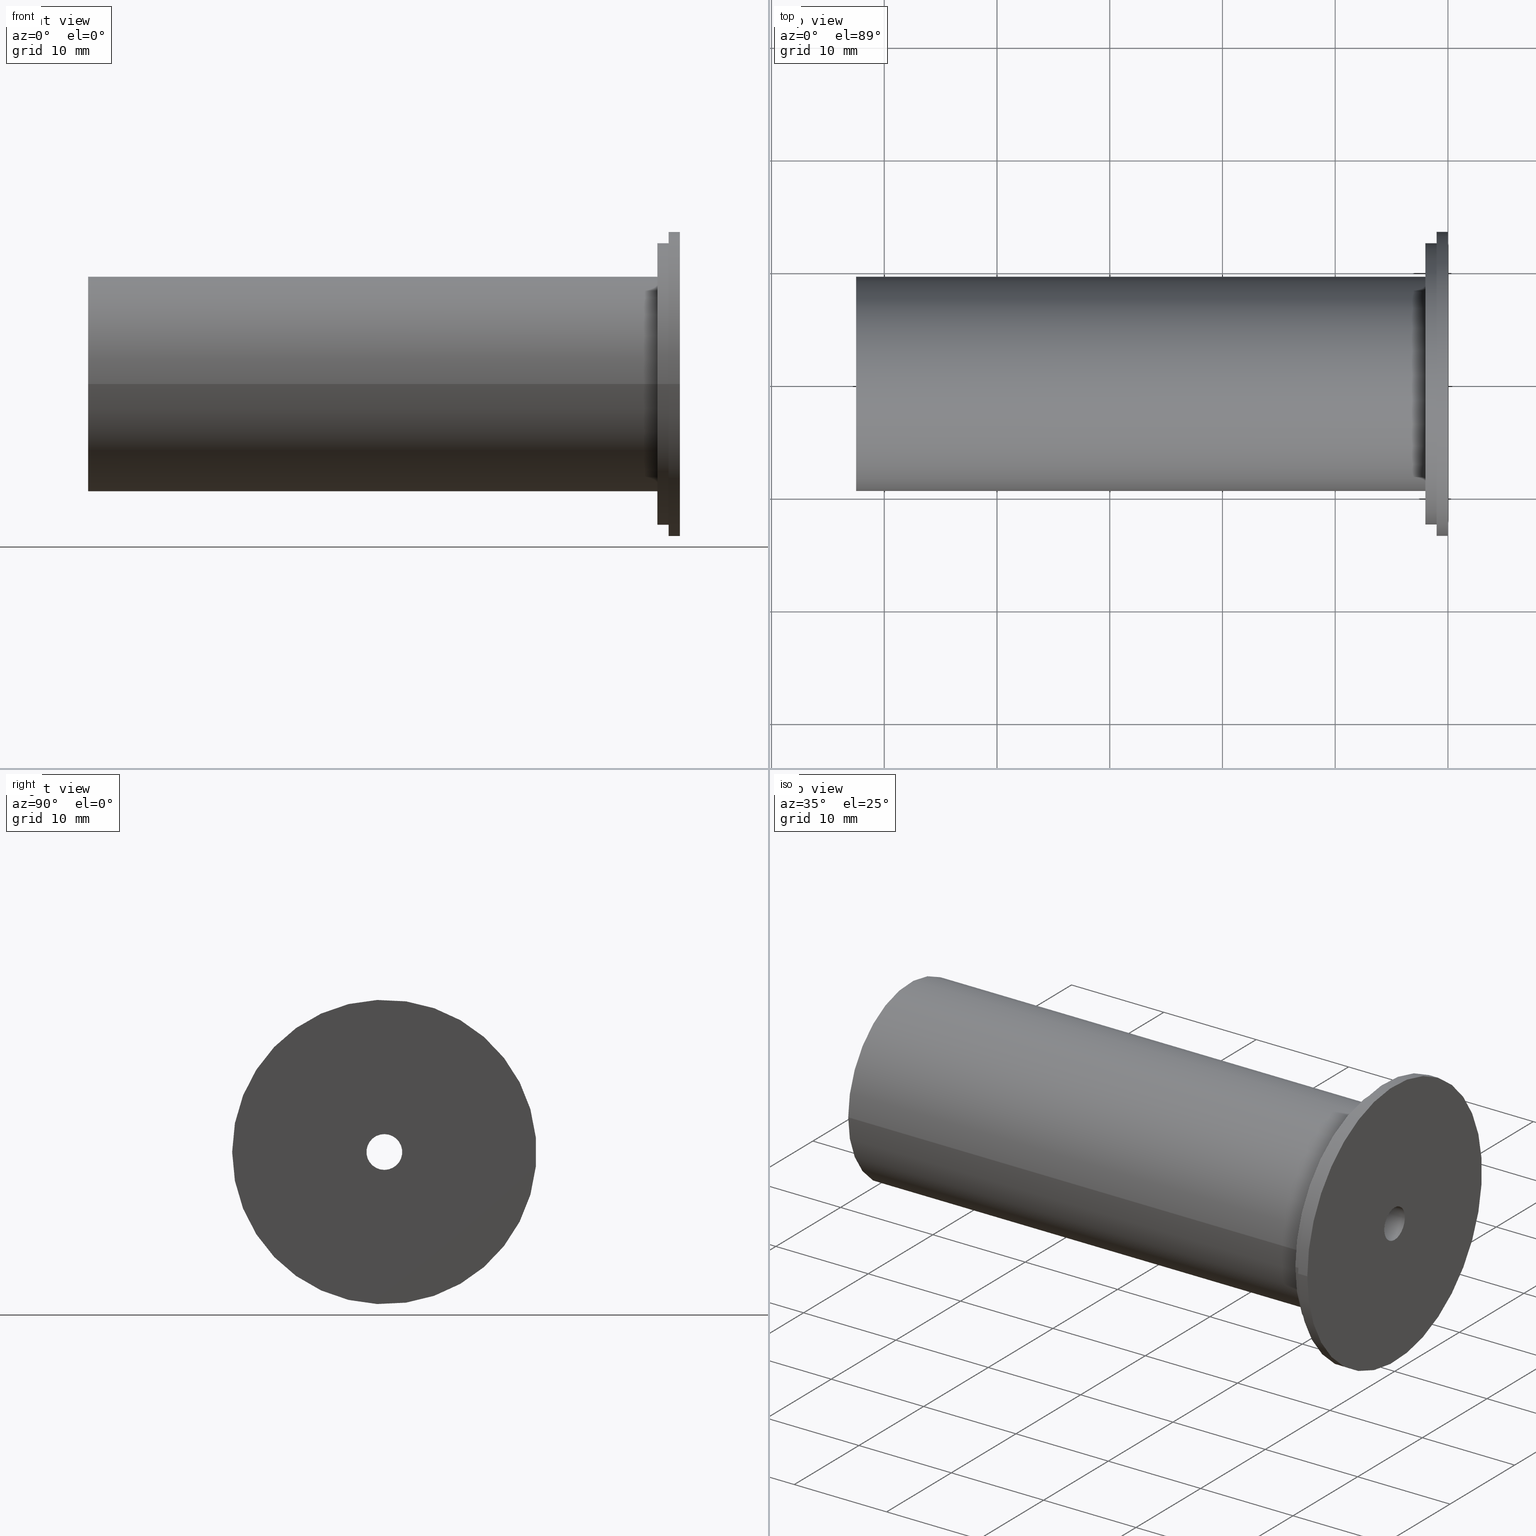
[diagram: canonical four-view strip — front | top / right | iso, engineering-drawing reading convention]
A machine part, canonical four-view strip (front | top / right | iso — engineering-drawing reading convention). The complete STEP part file that produces these views, byte-faithful:
ISO-10303-21;
HEADER;
/* Generated by software containing ST-Developer
 * from STEP Tools, Inc. (www.steptools.com) 
 */

FILE_DESCRIPTION(
/* description */ (''),
/* implementation_level */ '2;1');

FILE_NAME(
/* name */ 
'Z:\\\X2\C5F0AD6CC18C\X0\\\DRAWING_3D\\1. \X2\C778BCA4D130\X0\\\4. LAY
-OUT\\ACCESSORY&OTEHERS\\HYDRAULIC CHUCK\\REDUCTION SLEEVE (COLLET)\\H
K\\HK19.05\\HK19.05-3.175\\625108.stp',
/* time_stamp */ '2023-02-02T10:14:20+09:00',
/* author */ ('eos'),
/* organization */ (''),
/* preprocessor_version */ 'ST-DEVELOPER v18.1',
/* originating_system */ 'Autodesk Inventor 2022',
/* authorisation */ '');

FILE_SCHEMA (('AUTOMOTIVE_DESIGN { 1 0 10303 214 3 1 1 }'));
ENDSEC;

DATA;
#10=MECHANICAL_DESIGN_GEOMETRIC_PRESENTATION_REPRESENTATION('',(#13),#334);
#11=SHAPE_REPRESENTATION_RELATIONSHIP('SRR','None',#341,#12);
#12=ADVANCED_BREP_SHAPE_REPRESENTATION('',(#14),#333);
#13=STYLED_ITEM('',(#350),#14);
#14=MANIFOLD_SOLID_BREP('\X2\C194B9ACB4DC\X0\1',#176);
#15=FACE_BOUND('',#43,.T.);
#16=FACE_BOUND('',#46,.T.);
#17=FACE_BOUND('',#48,.T.);
#18=FACE_BOUND('',#51,.T.);
#19=PLANE('',#211);
#20=PLANE('',#216);
#21=PLANE('',#217);
#22=PLANE('',#221);
#23=CONICAL_SURFACE('',#203,3.75,0.785398163397448);
#24=CONICAL_SURFACE('',#207,4.125,0.785398163397448);
#25=FACE_OUTER_BOUND('',#37,.T.);
#26=FACE_OUTER_BOUND('',#38,.T.);
#27=FACE_OUTER_BOUND('',#39,.T.);
#28=FACE_OUTER_BOUND('',#40,.T.);
#29=FACE_OUTER_BOUND('',#41,.T.);
#30=FACE_OUTER_BOUND('',#42,.T.);
#31=FACE_OUTER_BOUND('',#44,.T.);
#32=FACE_OUTER_BOUND('',#45,.T.);
#33=FACE_OUTER_BOUND('',#47,.T.);
#34=FACE_OUTER_BOUND('',#49,.T.);
#35=FACE_OUTER_BOUND('',#50,.T.);
#36=FACE_OUTER_BOUND('',#52,.T.);
#37=EDGE_LOOP('',(#116,#117,#118,#119,#120));
#38=EDGE_LOOP('',(#121,#122,#123,#124,#125));
#39=EDGE_LOOP('',(#126,#127,#128,#129));
#40=EDGE_LOOP('',(#130,#131,#132,#133));
#41=EDGE_LOOP('',(#134,#135,#136,#137));
#42=EDGE_LOOP('',(#138));
#43=EDGE_LOOP('',(#139));
#44=EDGE_LOOP('',(#140,#141,#142,#143));
#45=EDGE_LOOP('',(#144));
#46=EDGE_LOOP('',(#145));
#47=EDGE_LOOP('',(#146));
#48=EDGE_LOOP('',(#147));
#49=EDGE_LOOP('',(#148,#149,#150,#151));
#50=EDGE_LOOP('',(#152));
#51=EDGE_LOOP('',(#153));
#52=EDGE_LOOP('',(#154,#155,#156,#157));
#53=LINE('',#289,#61);
#54=LINE('',#296,#62);
#55=LINE('',#300,#63);
#56=LINE('',#304,#64);
#57=LINE('',#308,#65);
#58=LINE('',#317,#66);
#59=LINE('',#325,#67);
#60=LINE('',#330,#68);
#61=VECTOR('',#230,1.5875);
#62=VECTOR('',#239,3.75);
#63=VECTOR('',#244,7.5);
#64=VECTOR('',#249,4.125);
#65=VECTOR('',#254,8.25);
#66=VECTOR('',#265,13.5);
#67=VECTOR('',#276,9.525);
#68=VECTOR('',#283,12.5);
#69=CIRCLE('',#200,1.5875);
#70=CIRCLE('',#201,1.5875);
#71=CIRCLE('',#202,1.5875);
#72=CIRCLE('',#204,7.5);
#73=CIRCLE('',#206,7.5);
#74=CIRCLE('',#208,8.25);
#75=CIRCLE('',#210,8.25);
#76=CIRCLE('',#212,13.5);
#77=CIRCLE('',#213,12.5);
#78=CIRCLE('',#215,13.5);
#79=CIRCLE('',#218,9.525);
#80=CIRCLE('',#220,9.525);
#81=CIRCLE('',#222,12.5);
#82=VERTEX_POINT('',#286);
#83=VERTEX_POINT('',#288);
#84=VERTEX_POINT('',#290);
#85=VERTEX_POINT('',#294);
#86=VERTEX_POINT('',#298);
#87=VERTEX_POINT('',#302);
#88=VERTEX_POINT('',#306);
#89=VERTEX_POINT('',#310);
#90=VERTEX_POINT('',#312);
#91=VERTEX_POINT('',#315);
#92=VERTEX_POINT('',#320);
#93=VERTEX_POINT('',#323);
#94=VERTEX_POINT('',#327);
#95=EDGE_CURVE('',#82,#82,#69,.T.);
#96=EDGE_CURVE('',#82,#83,#53,.T.);
#97=EDGE_CURVE('',#84,#83,#70,.T.);
#98=EDGE_CURVE('',#83,#84,#71,.T.);
#99=EDGE_CURVE('',#85,#85,#72,.T.);
#100=EDGE_CURVE('',#85,#84,#54,.T.);
#101=EDGE_CURVE('',#86,#86,#73,.T.);
#102=EDGE_CURVE('',#86,#85,#55,.T.);
#103=EDGE_CURVE('',#87,#87,#74,.T.);
#104=EDGE_CURVE('',#87,#86,#56,.T.);
#105=EDGE_CURVE('',#88,#88,#75,.T.);
#106=EDGE_CURVE('',#88,#87,#57,.T.);
#107=EDGE_CURVE('',#89,#89,#76,.T.);
#108=EDGE_CURVE('',#90,#90,#77,.T.);
#109=EDGE_CURVE('',#91,#91,#78,.T.);
#110=EDGE_CURVE('',#91,#89,#58,.T.);
#111=EDGE_CURVE('',#92,#92,#79,.T.);
#112=EDGE_CURVE('',#93,#93,#80,.T.);
#113=EDGE_CURVE('',#93,#92,#59,.T.);
#114=EDGE_CURVE('',#94,#94,#81,.T.);
#115=EDGE_CURVE('',#90,#94,#60,.T.);
#116=ORIENTED_EDGE('',*,*,#95,.F.);
#117=ORIENTED_EDGE('',*,*,#96,.T.);
#118=ORIENTED_EDGE('',*,*,#97,.F.);
#119=ORIENTED_EDGE('',*,*,#98,.F.);
#120=ORIENTED_EDGE('',*,*,#96,.F.);
#121=ORIENTED_EDGE('',*,*,#99,.T.);
#122=ORIENTED_EDGE('',*,*,#100,.T.);
#123=ORIENTED_EDGE('',*,*,#97,.T.);
#124=ORIENTED_EDGE('',*,*,#98,.T.);
#125=ORIENTED_EDGE('',*,*,#100,.F.);
#126=ORIENTED_EDGE('',*,*,#101,.F.);
#127=ORIENTED_EDGE('',*,*,#102,.T.);
#128=ORIENTED_EDGE('',*,*,#99,.F.);
#129=ORIENTED_EDGE('',*,*,#102,.F.);
#130=ORIENTED_EDGE('',*,*,#103,.T.);
#131=ORIENTED_EDGE('',*,*,#104,.T.);
#132=ORIENTED_EDGE('',*,*,#101,.T.);
#133=ORIENTED_EDGE('',*,*,#104,.F.);
#134=ORIENTED_EDGE('',*,*,#105,.F.);
#135=ORIENTED_EDGE('',*,*,#106,.T.);
#136=ORIENTED_EDGE('',*,*,#103,.F.);
#137=ORIENTED_EDGE('',*,*,#106,.F.);
#138=ORIENTED_EDGE('',*,*,#107,.F.);
#139=ORIENTED_EDGE('',*,*,#108,.T.);
#140=ORIENTED_EDGE('',*,*,#109,.F.);
#141=ORIENTED_EDGE('',*,*,#110,.T.);
#142=ORIENTED_EDGE('',*,*,#107,.T.);
#143=ORIENTED_EDGE('',*,*,#110,.F.);
#144=ORIENTED_EDGE('',*,*,#109,.T.);
#145=ORIENTED_EDGE('',*,*,#95,.T.);
#146=ORIENTED_EDGE('',*,*,#111,.F.);
#147=ORIENTED_EDGE('',*,*,#105,.T.);
#148=ORIENTED_EDGE('',*,*,#112,.F.);
#149=ORIENTED_EDGE('',*,*,#113,.T.);
#150=ORIENTED_EDGE('',*,*,#111,.T.);
#151=ORIENTED_EDGE('',*,*,#113,.F.);
#152=ORIENTED_EDGE('',*,*,#114,.F.);
#153=ORIENTED_EDGE('',*,*,#112,.T.);
#154=ORIENTED_EDGE('',*,*,#108,.F.);
#155=ORIENTED_EDGE('',*,*,#115,.T.);
#156=ORIENTED_EDGE('',*,*,#114,.T.);
#157=ORIENTED_EDGE('',*,*,#115,.F.);
#158=CYLINDRICAL_SURFACE('',#199,1.5875);
#159=CYLINDRICAL_SURFACE('',#205,7.5);
#160=CYLINDRICAL_SURFACE('',#209,8.25);
#161=CYLINDRICAL_SURFACE('',#214,13.5);
#162=CYLINDRICAL_SURFACE('',#219,9.525);
#163=CYLINDRICAL_SURFACE('',#223,12.5);
#164=ADVANCED_FACE('',(#25),#158,.F.);
#165=ADVANCED_FACE('',(#26),#23,.F.);
#166=ADVANCED_FACE('',(#27),#159,.F.);
#167=ADVANCED_FACE('',(#28),#24,.F.);
#168=ADVANCED_FACE('',(#29),#160,.F.);
#169=ADVANCED_FACE('',(#30,#15),#19,.T.);
#170=ADVANCED_FACE('',(#31),#161,.T.);
#171=ADVANCED_FACE('',(#32,#16),#20,.T.);
#172=ADVANCED_FACE('',(#33,#17),#21,.T.);
#173=ADVANCED_FACE('',(#34),#162,.T.);
#174=ADVANCED_FACE('',(#35,#18),#22,.T.);
#175=ADVANCED_FACE('',(#36),#163,.T.);
#176=CLOSED_SHELL('',(#164,#165,#166,#167,#168,#169,#170,#171,#172,#173,
#174,#175));
#177=DERIVED_UNIT_ELEMENT(#180,1.);
#178=DERIVED_UNIT_ELEMENT(#336,-3.);
#179=DIMENSIONAL_EXPONENTS(1.,0.,0.,0.,0.,0.,0.);
#180=(
CONVERSION_BASED_UNIT('gram',#182)
MASS_UNIT()
NAMED_UNIT(#179)
);
#181=(
MASS_UNIT()
NAMED_UNIT(*)
SI_UNIT(.KILO.,.GRAM.)
);
#182=MASS_MEASURE_WITH_UNIT(MASS_MEASURE(0.001),#181);
#183=DERIVED_UNIT((#177,#178));
#184=MEASURE_REPRESENTATION_ITEM('density measure',
POSITIVE_RATIO_MEASURE(1.),#183);
#185=PROPERTY_DEFINITION_REPRESENTATION(#190,#187);
#186=PROPERTY_DEFINITION_REPRESENTATION(#191,#188);
#187=REPRESENTATION('material name',(#189),#333);
#188=REPRESENTATION('density',(#184),#333);
#189=DESCRIPTIVE_REPRESENTATION_ITEM('\X2\C77CBC18\X0\','\X2\C77CBC18\X0\');
#190=PROPERTY_DEFINITION('material property','material name',#343);
#191=PROPERTY_DEFINITION('material property','density of part',#343);
#192=DATE_TIME_ROLE('creation_date');
#193=APPLIED_DATE_AND_TIME_ASSIGNMENT(#194,#192,(#343));
#194=DATE_AND_TIME(#195,#196);
#195=CALENDAR_DATE(2023,2,2);
#196=LOCAL_TIME(0,0,0.,#197);
#197=COORDINATED_UNIVERSAL_TIME_OFFSET(0,0,.BEHIND.);
#198=AXIS2_PLACEMENT_3D('placement',#284,#224,#225);
#199=AXIS2_PLACEMENT_3D('',#285,#226,#227);
#200=AXIS2_PLACEMENT_3D('',#287,#228,#229);
#201=AXIS2_PLACEMENT_3D('',#291,#231,#232);
#202=AXIS2_PLACEMENT_3D('',#292,#233,#234);
#203=AXIS2_PLACEMENT_3D('',#293,#235,#236);
#204=AXIS2_PLACEMENT_3D('',#295,#237,#238);
#205=AXIS2_PLACEMENT_3D('',#297,#240,#241);
#206=AXIS2_PLACEMENT_3D('',#299,#242,#243);
#207=AXIS2_PLACEMENT_3D('',#301,#245,#246);
#208=AXIS2_PLACEMENT_3D('',#303,#247,#248);
#209=AXIS2_PLACEMENT_3D('',#305,#250,#251);
#210=AXIS2_PLACEMENT_3D('',#307,#252,#253);
#211=AXIS2_PLACEMENT_3D('',#309,#255,#256);
#212=AXIS2_PLACEMENT_3D('',#311,#257,#258);
#213=AXIS2_PLACEMENT_3D('',#313,#259,#260);
#214=AXIS2_PLACEMENT_3D('',#314,#261,#262);
#215=AXIS2_PLACEMENT_3D('',#316,#263,#264);
#216=AXIS2_PLACEMENT_3D('',#318,#266,#267);
#217=AXIS2_PLACEMENT_3D('',#319,#268,#269);
#218=AXIS2_PLACEMENT_3D('',#321,#270,#271);
#219=AXIS2_PLACEMENT_3D('',#322,#272,#273);
#220=AXIS2_PLACEMENT_3D('',#324,#274,#275);
#221=AXIS2_PLACEMENT_3D('',#326,#277,#278);
#222=AXIS2_PLACEMENT_3D('',#328,#279,#280);
#223=AXIS2_PLACEMENT_3D('',#329,#281,#282);
#224=DIRECTION('axis',(0.,0.,1.));
#225=DIRECTION('refdir',(1.,0.,0.));
#226=DIRECTION('center_axis',(1.,0.,0.));
#227=DIRECTION('ref_axis',(0.,0.,-1.));
#228=DIRECTION('center_axis',(-1.,0.,0.));
#229=DIRECTION('ref_axis',(0.,0.,-1.));
#230=DIRECTION('',(-1.,0.,0.));
#231=DIRECTION('center_axis',(1.,0.,0.));
#232=DIRECTION('ref_axis',(0.,0.,-1.));
#233=DIRECTION('center_axis',(1.,0.,0.));
#234=DIRECTION('ref_axis',(0.,0.,-1.));
#235=DIRECTION('center_axis',(-1.,0.,0.));
#236=DIRECTION('ref_axis',(0.,0.,1.));
#237=DIRECTION('center_axis',(-1.,0.,0.));
#238=DIRECTION('ref_axis',(0.,0.,1.));
#239=DIRECTION('',(0.707106781186547,8.65956056235493E-17,0.707106781186547));
#240=DIRECTION('center_axis',(-1.,0.,0.));
#241=DIRECTION('ref_axis',(0.,0.,1.));
#242=DIRECTION('center_axis',(1.,0.,0.));
#243=DIRECTION('ref_axis',(0.,0.,1.));
#244=DIRECTION('',(1.,0.,0.));
#245=DIRECTION('center_axis',(-1.,0.,0.));
#246=DIRECTION('ref_axis',(0.,0.,1.));
#247=DIRECTION('center_axis',(-1.,0.,0.));
#248=DIRECTION('ref_axis',(0.,0.,1.));
#249=DIRECTION('',(0.707106781186548,8.65956056235493E-17,0.707106781186547));
#250=DIRECTION('center_axis',(-1.,0.,0.));
#251=DIRECTION('ref_axis',(0.,0.,1.));
#252=DIRECTION('center_axis',(1.,0.,0.));
#253=DIRECTION('ref_axis',(0.,0.,1.));
#254=DIRECTION('',(1.,0.,0.));
#255=DIRECTION('center_axis',(-1.,0.,0.));
#256=DIRECTION('ref_axis',(0.,0.,1.));
#257=DIRECTION('center_axis',(1.,0.,0.));
#258=DIRECTION('ref_axis',(0.,0.,-1.));
#259=DIRECTION('center_axis',(1.,0.,0.));
#260=DIRECTION('ref_axis',(0.,0.,-1.));
#261=DIRECTION('center_axis',(1.,0.,0.));
#262=DIRECTION('ref_axis',(0.,1.,0.));
#263=DIRECTION('center_axis',(1.,0.,0.));
#264=DIRECTION('ref_axis',(0.,0.,-1.));
#265=DIRECTION('',(-1.,0.,0.));
#266=DIRECTION('center_axis',(1.,0.,0.));
#267=DIRECTION('ref_axis',(0.,0.,-1.));
#268=DIRECTION('center_axis',(-1.,0.,0.));
#269=DIRECTION('ref_axis',(0.,0.,1.));
#270=DIRECTION('center_axis',(1.,0.,0.));
#271=DIRECTION('ref_axis',(0.,0.,-1.));
#272=DIRECTION('center_axis',(1.,0.,0.));
#273=DIRECTION('ref_axis',(0.,1.,0.));
#274=DIRECTION('center_axis',(1.,0.,0.));
#275=DIRECTION('ref_axis',(0.,0.,-1.));
#276=DIRECTION('',(-1.,0.,0.));
#277=DIRECTION('center_axis',(-1.,0.,0.));
#278=DIRECTION('ref_axis',(0.,0.,1.));
#279=DIRECTION('center_axis',(1.,0.,0.));
#280=DIRECTION('ref_axis',(0.,0.,-1.));
#281=DIRECTION('center_axis',(1.,0.,0.));
#282=DIRECTION('ref_axis',(0.,1.,0.));
#283=DIRECTION('',(-1.,0.,0.));
#284=CARTESIAN_POINT('',(0.,0.,0.));
#285=CARTESIAN_POINT('Origin',(-64.9172550251472,0.,0.));
#286=CARTESIAN_POINT('',(2.66453525910038E-14,-1.94412679364642E-16,1.5875));
#287=CARTESIAN_POINT('Origin',(1.77635683940025E-14,0.,0.));
#288=CARTESIAN_POINT('',(-16.0875,-1.94412679364642E-16,1.5875));
#289=CARTESIAN_POINT('',(-64.9172550251472,-1.94412679364642E-16,1.5875));
#290=CARTESIAN_POINT('',(-16.0875,-1.94412679364642E-16,-1.5875));
#291=CARTESIAN_POINT('Origin',(-16.0875,0.,0.));
#292=CARTESIAN_POINT('Origin',(-16.0875,0.,0.));
#293=CARTESIAN_POINT('Origin',(-18.25,0.,0.));
#294=CARTESIAN_POINT('',(-22.,-9.18485099360515E-16,-7.5));
#295=CARTESIAN_POINT('Origin',(-22.,0.,0.));
#296=CARTESIAN_POINT('',(-18.25,-4.59242549680257E-16,-3.75));
#297=CARTESIAN_POINT('Origin',(-37.25,0.,0.));
#298=CARTESIAN_POINT('',(-37.25,9.18485099360515E-16,-7.5));
#299=CARTESIAN_POINT('Origin',(-37.25,0.,0.));
#300=CARTESIAN_POINT('',(-37.25,-9.18485099360515E-16,-7.5));
#301=CARTESIAN_POINT('Origin',(-33.875,0.,0.));
#302=CARTESIAN_POINT('',(-38.,-1.01033360929657E-15,-8.25));
#303=CARTESIAN_POINT('Origin',(-38.,0.,0.));
#304=CARTESIAN_POINT('',(-33.875,-5.05166804648283E-16,-4.125));
#305=CARTESIAN_POINT('Origin',(-45.25,0.,0.));
#306=CARTESIAN_POINT('',(-52.5,-1.01033360929657E-15,-8.25));
#307=CARTESIAN_POINT('Origin',(-52.5,0.,0.));
#308=CARTESIAN_POINT('',(-45.25,-1.01033360929657E-15,-8.25));
#309=CARTESIAN_POINT('Origin',(-0.999999999999996,13.5,0.));
#310=CARTESIAN_POINT('',(-0.999999999999996,-13.5,-1.65327317884893E-15));
#311=CARTESIAN_POINT('Origin',(-0.999999999999996,0.,0.));
#312=CARTESIAN_POINT('',(-0.999999999999996,-12.5,-1.53080849893419E-15));
#313=CARTESIAN_POINT('Origin',(-0.999999999999996,0.,0.));
#314=CARTESIAN_POINT('Origin',(-0.499999999999995,0.,0.));
#315=CARTESIAN_POINT('',(4.9960036108132E-15,-13.5,-1.65327317884893E-15));
#316=CARTESIAN_POINT('Origin',(4.9960036108132E-15,0.,0.));
#317=CARTESIAN_POINT('',(-0.499999999999995,-13.5,-1.65327317884893E-15));
#318=CARTESIAN_POINT('Origin',(1.33226762955019E-14,0.,0.));
#319=CARTESIAN_POINT('Origin',(-52.5,9.525,0.));
#320=CARTESIAN_POINT('',(-52.5,-9.525,-1.16647607618785E-15));
#321=CARTESIAN_POINT('Origin',(-52.5,0.,0.));
#322=CARTESIAN_POINT('Origin',(-27.25,0.,0.));
#323=CARTESIAN_POINT('',(-2.,-9.525,-1.16647607618785E-15));
#324=CARTESIAN_POINT('Origin',(-2.,0.,0.));
#325=CARTESIAN_POINT('',(-27.25,-9.525,-1.16647607618785E-15));
#326=CARTESIAN_POINT('Origin',(-2.,12.5,0.));
#327=CARTESIAN_POINT('',(-2.,-12.5,-1.53080849893419E-15));
#328=CARTESIAN_POINT('Origin',(-2.,0.,0.));
#329=CARTESIAN_POINT('Origin',(-1.5,0.,0.));
#330=CARTESIAN_POINT('',(-1.5,-12.5,-1.53080849893419E-15));
#331=UNCERTAINTY_MEASURE_WITH_UNIT(LENGTH_MEASURE(0.01),#335,
'DISTANCE_ACCURACY_VALUE',
'Maximum model space distance between geometric entities at asserted c
onnectivities');
#332=UNCERTAINTY_MEASURE_WITH_UNIT(LENGTH_MEASURE(0.01),#335,
'DISTANCE_ACCURACY_VALUE',
'Maximum model space distance between geometric entities at asserted c
onnectivities');
#333=(
GEOMETRIC_REPRESENTATION_CONTEXT(3)
GLOBAL_UNCERTAINTY_ASSIGNED_CONTEXT((#331))
GLOBAL_UNIT_ASSIGNED_CONTEXT((#335,#337,#338))
REPRESENTATION_CONTEXT('','3D')
);
#334=(
GEOMETRIC_REPRESENTATION_CONTEXT(3)
GLOBAL_UNCERTAINTY_ASSIGNED_CONTEXT((#332))
GLOBAL_UNIT_ASSIGNED_CONTEXT((#335,#337,#338))
REPRESENTATION_CONTEXT('','3D')
);
#335=(
LENGTH_UNIT()
NAMED_UNIT(*)
SI_UNIT(.MILLI.,.METRE.)
);
#336=(
LENGTH_UNIT()
NAMED_UNIT(*)
SI_UNIT(.CENTI.,.METRE.)
);
#337=(
NAMED_UNIT(*)
PLANE_ANGLE_UNIT()
SI_UNIT($,.RADIAN.)
);
#338=(
NAMED_UNIT(*)
SI_UNIT($,.STERADIAN.)
SOLID_ANGLE_UNIT()
);
#339=SHAPE_DEFINITION_REPRESENTATION(#340,#341);
#340=PRODUCT_DEFINITION_SHAPE('',$,#343);
#341=SHAPE_REPRESENTATION('',(#198),#333);
#342=PRODUCT_DEFINITION_CONTEXT('part definition',#347,'design');
#343=PRODUCT_DEFINITION('LO-HK19.05-3.175','LO-HK19.05-3.175',#344,#342);
#344=PRODUCT_DEFINITION_FORMATION('',$,#349);
#345=PRODUCT_RELATED_PRODUCT_CATEGORY('LO-HK19.05-3.175',
'LO-HK19.05-3.175',(#349));
#346=APPLICATION_PROTOCOL_DEFINITION('international standard',
'automotive_design',2009,#347);
#347=APPLICATION_CONTEXT(
'Core Data for Automotive Mechanical Design Process');
#348=PRODUCT_CONTEXT('part definition',#347,'mechanical');
#349=PRODUCT('LO-HK19.05-3.175','LO-HK19.05-3.175',$,(#348));
#350=PRESENTATION_STYLE_ASSIGNMENT((#351));
#351=SURFACE_STYLE_USAGE(.BOTH.,#354);
#352=SURFACE_STYLE_RENDERING_WITH_PROPERTIES($,#358,(#353));
#353=SURFACE_STYLE_TRANSPARENT(0.339999973773956);
#354=SURFACE_SIDE_STYLE('',(#355,#352));
#355=SURFACE_STYLE_FILL_AREA(#356);
#356=FILL_AREA_STYLE('',(#357));
#357=FILL_AREA_STYLE_COLOUR('',#358);
#358=COLOUR_RGB('',0.925490196078431,0.945098039215686,0.937254901960784);
ENDSEC;
END-ISO-10303-21;
